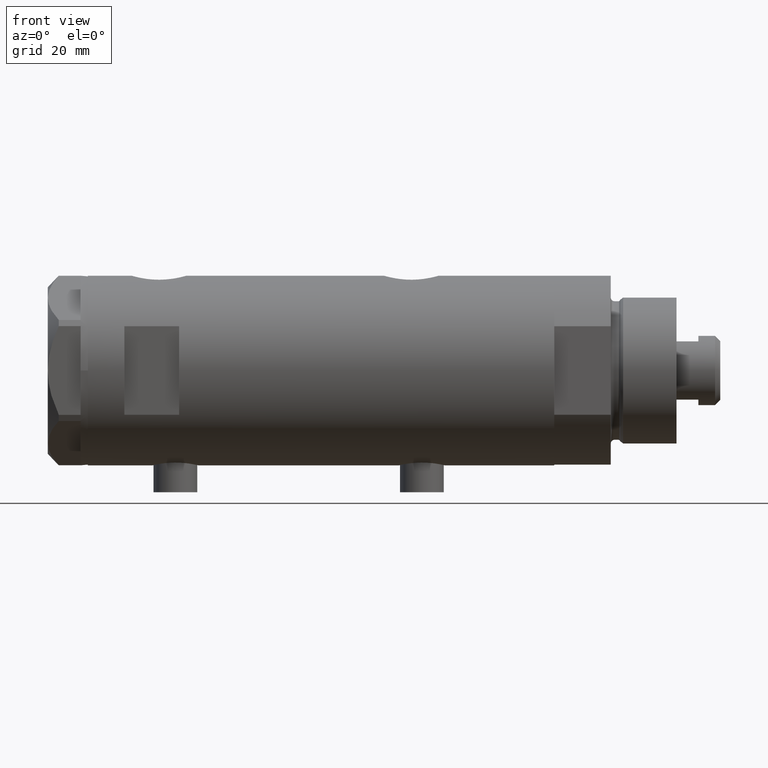
[diagram: clean part render]
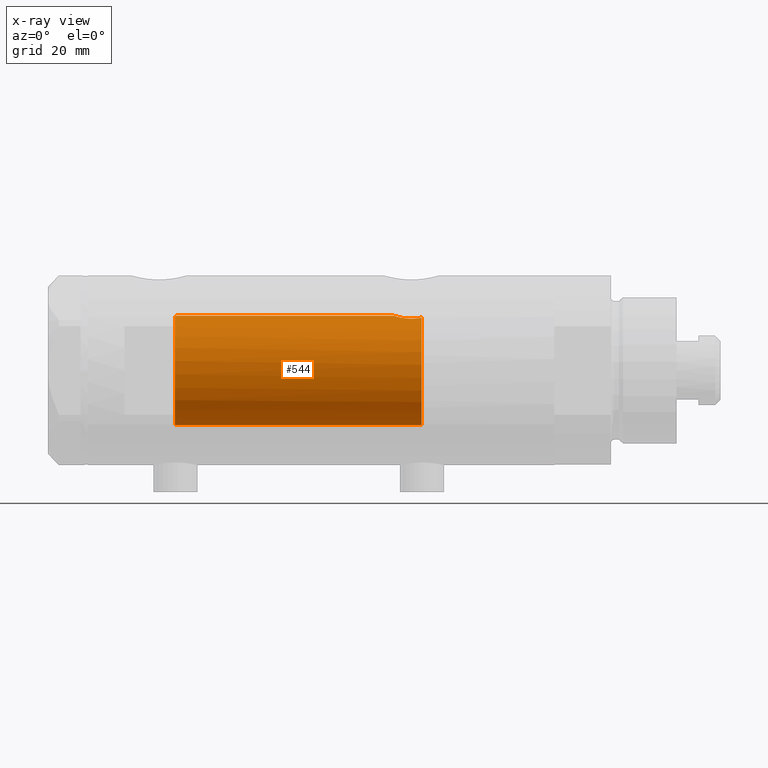
[diagram: x-ray — body ghosted, one internal face saturated and labeled with its STEP entity id]
A machine part, front view, then the same camera in x-ray: the body is ghosted and one INTERNAL B-rep face — a face not visible from any outside direction — is saturated and labeled: STEP entity #544.
In plain terms, the highlighted cylindrical surface (partial cylindrical patch) has radius 15 mm, axis along (1, 0, -0).
Its self-contained STEP definition (entity closure, byte-faithful):
#8 = CARTESIAN_POINT ( 'NONE',  ( 14.30602371879161439, -4.510400617436905790, -26.58665028800271557 ) ) ;
#35 = CARTESIAN_POINT ( 'NONE',  ( 15.00000000000000000, 5.959273468635536151E-16, -19.88500000000000156 ) ) ;
#68 = DIRECTION ( 'NONE',  ( 1.000000000000000000, 0.000000000000000000, 0.000000000000000000 ) ) ;
#225 = DIRECTION ( 'NONE',  ( 0.000000000000000000, 0.000000000000000000, -1.000000000000000000 ) ) ;
#248 = LINE ( 'NONE', #3286, #1708 ) ;
#274 = VECTOR ( 'NONE', #3552, 1000.000000000000000 ) ;
#294 = CARTESIAN_POINT ( 'NONE',  ( 14.46277203719950855, -3.978470183374505975, -27.55000000000000426 ) ) ;
#363 = CARTESIAN_POINT ( 'NONE',  ( 14.33594561531103473, -4.414979644548147952, -22.69453393419243525 ) ) ;
#386 = VERTEX_POINT ( 'NONE', #1100 ) ;
#434 = CARTESIAN_POINT ( 'NONE',  ( 15.00000000000000000, 5.959273468635536151E-16, -19.88500000000000156 ) ) ;
#463 = CARTESIAN_POINT ( 'NONE',  ( 14.19797987272029438, -4.839174951492910104, -25.29741451501410765 ) ) ;
#492 = CARTESIAN_POINT ( 'NONE',  ( 0.000000000000000000, 0.000000000000000000, 40.15000000000000568 ) ) ;
#529 = EDGE_LOOP ( 'NONE', ( #3434, #2824, #2193, #971, #2952, #4396 ) ) ;
#544 = ADVANCED_FACE ( 'NONE', ( #1567 ), #3754, .F. ) ;
#574 = VERTEX_POINT ( 'NONE', #35 ) ;
#769 = CIRCLE ( 'NONE', #932, 15.00000000000000000 ) ;
#798 = CARTESIAN_POINT ( 'NONE',  ( 14.18786347641749757, -4.868757996482117711, -24.63322300400293230 ) ) ;
#846 = CARTESIAN_POINT ( 'NONE',  ( 15.00000000000000000, -0.2216692655473424256, -19.88499999999999801 ) ) ;
#932 = AXIS2_PLACEMENT_3D ( 'NONE', #492, #3083, #68 ) ;
#971 = ORIENTED_EDGE ( 'NONE', *, *, #4690, .T. ) ;
#1013 = AXIS2_PLACEMENT_3D ( 'NONE', #3931, #225, #2405 ) ;
#1072 = VERTEX_POINT ( 'NONE', #1559 ) ;
#1100 = CARTESIAN_POINT ( 'NONE',  ( 14.82638779339054480, -2.275571356824482638, 40.15000000000000568 ) ) ;
#1119 = DIRECTION ( 'NONE',  ( -0.000000000000000000, -0.000000000000000000, -1.000000000000000000 ) ) ;
#1163 = CIRCLE ( 'NONE', #1013, 15.00000000000000000 ) ;
#1190 = CARTESIAN_POINT ( 'NONE',  ( 14.84733308118440398, -2.144376633039214219, -20.37751912952715472 ) ) ;
#1209 = CARTESIAN_POINT ( 'NONE',  ( 14.49994286062941207, -3.853373987417221702, -21.74743896782911534 ) ) ;
#1509 = CARTESIAN_POINT ( 'NONE',  ( 14.23846660849503465, -4.718934182878723682, -25.95401121469808459 ) ) ;
#1559 = CARTESIAN_POINT ( 'NONE',  ( 15.00000000000000000, 0.000000000000000000, 39.58500000000000085 ) ) ;
#1567 = FACE_OUTER_BOUND ( 'NONE', #529, .T. ) ;
#1583 = CARTESIAN_POINT ( 'NONE',  ( 14.23984499268010673, -4.714778477509576682, -23.53008258614764614 ) ) ;
#1701 = EDGE_CURVE ( 'NONE', #4263, #4236, #248, .T. ) ;
#1708 = VECTOR ( 'NONE', #4724, 1000.000000000000000 ) ;
#1742 = CARTESIAN_POINT ( 'NONE',  ( 14.93900636919599911, -1.364886281976677163, 39.77622504971314044 ) ) ;
#2109 = EDGE_CURVE ( 'NONE', #3469, #574, #4787, .T. ) ;
#2193 = ORIENTED_EDGE ( 'NONE', *, *, #2109, .F. ) ;
#2238 = CARTESIAN_POINT ( 'NONE',  ( 14.20926245015526135, -4.806160851464704287, -23.96377327795615031 ) ) ;
#2269 = CARTESIAN_POINT ( 'NONE',  ( 14.25856516724843814, -4.658255869285517825, -26.17044016644936733 ) ) ;
#2291 = CARTESIAN_POINT ( 'NONE',  ( 14.25977760983849230, -4.654557688538887739, -23.31736805897653042 ) ) ;
#2311 = CARTESIAN_POINT ( 'NONE',  ( 14.96064712090283777, -1.106639041422191605, -20.00738179736371336 ) ) ;
#2340 = B_SPLINE_CURVE_WITH_KNOTS ( 'NONE', 3,
 ( #2913, #3178, #2508, #1742, #4669, #2817, #4381, #3984 ),
 .UNSPECIFIED., .F., .F.,
 ( 4, 2, 2, 4 ),
 ( 2.641598245732904660E-19, 0.001182100180564266394, 0.001773150270846399592, 0.002364200361128532789 ),
 .UNSPECIFIED. ) ;
#2346 = CARTESIAN_POINT ( 'NONE',  ( 14.90017778876745069, -1.739641523727900596, -20.20130925695125867 ) ) ;
#2405 = DIRECTION ( 'NONE',  ( -1.000000000000000000, 0.000000000000000000, 0.000000000000000000 ) ) ;
#2439 = LINE ( 'NONE', #4249, #274 ) ;
#2508 = CARTESIAN_POINT ( 'NONE',  ( 14.98404828787190191, -0.7909490205761877668, 39.63356230794191504 ) ) ;
#2564 = EDGE_CURVE ( 'NONE', #1072, #574, #2439, .T. ) ;
#2636 = AXIS2_PLACEMENT_3D ( 'NONE', #3825, #1119, #3054 ) ;
#2688 = CARTESIAN_POINT ( 'NONE',  ( 14.19858338301463085, -4.837406781463695182, -24.18614104090498884 ) ) ;
#2712 = CARTESIAN_POINT ( 'NONE',  ( 14.81710879718117724, -2.343063746046469387, -20.48067662538953471 ) ) ;
#2817 = CARTESIAN_POINT ( 'NONE',  ( 14.87720562886504538, -1.924385875533401125, 39.97741675737692901 ) ) ;
#2824 = ORIENTED_EDGE ( 'NONE', *, *, #2564, .T. ) ;
#2913 = CARTESIAN_POINT ( 'NONE',  ( 15.00000000000000000, 0.000000000000000000, 39.58500000000000085 ) ) ;
#2952 = ORIENTED_EDGE ( 'NONE', *, *, #1701, .F. ) ;
#3000 = CARTESIAN_POINT ( 'NONE',  ( 14.42796883436190569, -4.108435602805831977, -22.10726922759031510 ) ) ;
#3020 = CARTESIAN_POINT ( 'NONE',  ( 14.97537530859971966, -0.8874117095427782598, -19.96137464055827948 ) ) ;
#3054 = DIRECTION ( 'NONE',  ( -1.000000000000000000, 0.000000000000000000, 0.000000000000000000 ) ) ;
#3073 = CARTESIAN_POINT ( 'NONE',  ( 14.30772250772360188, -4.505024017690379523, -22.90010806953218037 ) ) ;
#3083 = DIRECTION ( 'NONE',  ( 0.000000000000000000, 0.000000000000000000, 1.000000000000000000 ) ) ;
#3178 = CARTESIAN_POINT ( 'NONE',  ( 15.00000000000000178, -0.3999014018875941545, 39.58500000000000085 ) ) ;
#3286 = CARTESIAN_POINT ( 'NONE',  ( -15.00000000000000000, 0.000000000000000000, 63.95000000000000995 ) ) ;
#3339 = EDGE_CURVE ( 'NONE', #1072, #386, #2340, .T. ) ;
#3414 = CARTESIAN_POINT ( 'NONE',  ( 14.64727859494137263, -3.248701865452403581, -21.10174013696654782 ) ) ;
#3434 = ORIENTED_EDGE ( 'NONE', *, *, #3339, .F. ) ;
#3444 = CARTESIAN_POINT ( 'NONE',  ( 14.33349657381506681, -4.422893686125039636, -26.78827841538882737 ) ) ;
#3469 = VERTEX_POINT ( 'NONE', #294 ) ;
#3531 = CARTESIAN_POINT ( 'NONE',  ( -15.00000000000000000, 0.000000000000000000, -27.55000000000000426 ) ) ;
#3552 = DIRECTION ( 'NONE',  ( -0.000000000000000000, -0.000000000000000000, -1.000000000000000000 ) ) ;
#3578 = CARTESIAN_POINT ( 'NONE',  ( -15.00000000000000000, 0.000000000000000000, 40.15000000000000568 ) ) ;
#3754 = CYLINDRICAL_SURFACE ( 'NONE', #2636, 15.00000000000000000 ) ;
#3770 = CARTESIAN_POINT ( 'NONE',  ( 14.92307637240703677, -1.532123959568890248, -20.12726557582076126 ) ) ;
#3794 = CARTESIAN_POINT ( 'NONE',  ( 14.99508877558422704, -0.4434836953032585405, -19.90007684727664028 ) ) ;
#3825 = CARTESIAN_POINT ( 'NONE',  ( 0.000000000000000000, 0.000000000000000000, 63.95000000000000995 ) ) ;
#3931 = CARTESIAN_POINT ( 'NONE',  ( 0.000000000000000000, 0.000000000000000000, -27.55000000000000426 ) ) ;
#3984 = CARTESIAN_POINT ( 'NONE',  ( 14.82638779339054480, -2.275571356824482638, 40.15000000000000568 ) ) ;
#4116 = CARTESIAN_POINT ( 'NONE',  ( 14.18781489734108270, -4.868896704194245473, -24.85545969036061464 ) ) ;
#4144 = CARTESIAN_POINT ( 'NONE',  ( 14.46277203719950855, -3.978470183374505975, -27.55000000000000426 ) ) ;
#4163 = CARTESIAN_POINT ( 'NONE',  ( 14.20819413761015326, -4.809312895991455505, -25.51713251522166104 ) ) ;
#4236 = VERTEX_POINT ( 'NONE', #3531 ) ;
#4249 = CARTESIAN_POINT ( 'NONE',  ( 15.00000000000000000, 1.836970198721029194E-15, 63.95000000000000995 ) ) ;
#4263 = VERTEX_POINT ( 'NONE', #3578 ) ;
#4381 = CARTESIAN_POINT ( 'NONE',  ( 14.85289483991917336, -2.102865829523694607, 40.05860377881607093 ) ) ;
#4396 = ORIENTED_EDGE ( 'NONE', *, *, #4536, .T. ) ;
#4536 = EDGE_CURVE ( 'NONE', #4263, #386, #769, .T. ) ;
#4540 = CARTESIAN_POINT ( 'NONE',  ( 14.72015646623405871, -2.909233045280604113, -20.82572079632733519 ) ) ;
#4560 = CARTESIAN_POINT ( 'NONE',  ( 14.39424372609267522, -4.221002267729139668, -27.17893131093289938 ) ) ;
#4669 = CARTESIAN_POINT ( 'NONE',  ( 14.92029983160078466, -1.555365312915176323, 39.83609703141412695 ) ) ;
#4690 = EDGE_CURVE ( 'NONE', #3469, #4236, #1163, .T. ) ;
#4724 = DIRECTION ( 'NONE',  ( -0.000000000000000000, -0.000000000000000000, -1.000000000000000000 ) ) ;
#4787 = B_SPLINE_CURVE_WITH_KNOTS ( 'NONE', 3,
 ( #4144, #4862, #4560, #3444, #8, #2269, #1509, #4163, #463, #4116, #798, #2688, #2238, #1583, #2291, #3073, #363, #3000, #1209, #3414, #4540, #2712, #1190, #2346, #3770, #2311, #3020, #3794, #846, #434 ),
 .UNSPECIFIED., .F., .F.,
 ( 4, 2, 2, 2, 2, 2, 2, 2, 2, 2, 2, 2, 2, 2, 4 ),
 ( 0.004672505804584291961, 0.005337629501999298885, 0.006002753199414305810, 0.006667876896829313602, 0.007333000594244319659, 0.007998124291659327451, 0.008663247989074335242, 0.009328371686489341300, 0.009993495383904347357, 0.01132374277873436988, 0.01265399017356439067, 0.01331911387097940366, 0.01398423756839441666, 0.01464936126580942966, 0.01531448496322444265 ),
 .UNSPECIFIED. ) ;
#4862 = CARTESIAN_POINT ( 'NONE',  ( 14.42775250319760083, -4.105775281508736718, -27.36911445102908758 ) ) ;